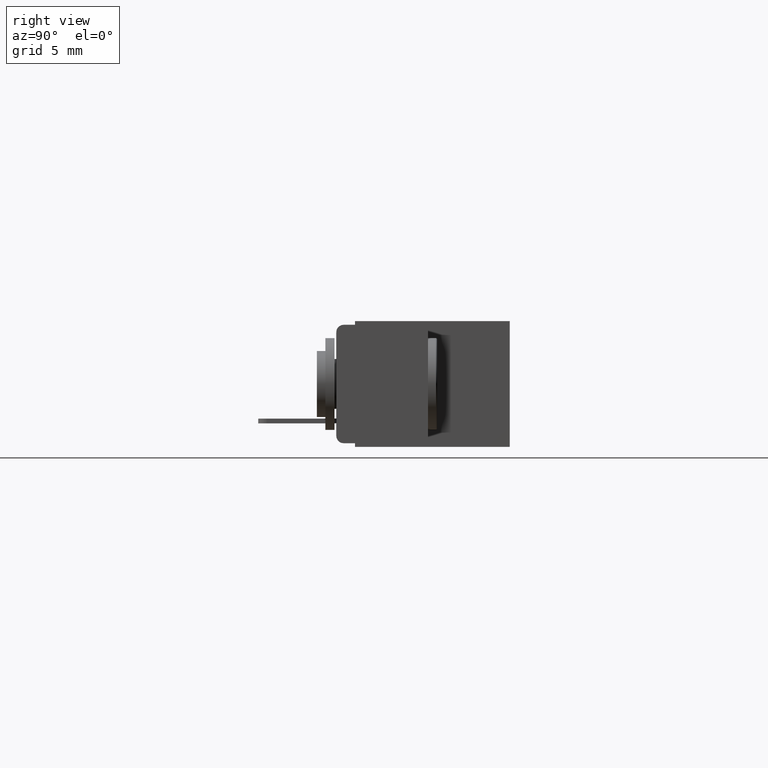
[diagram: clean part render]
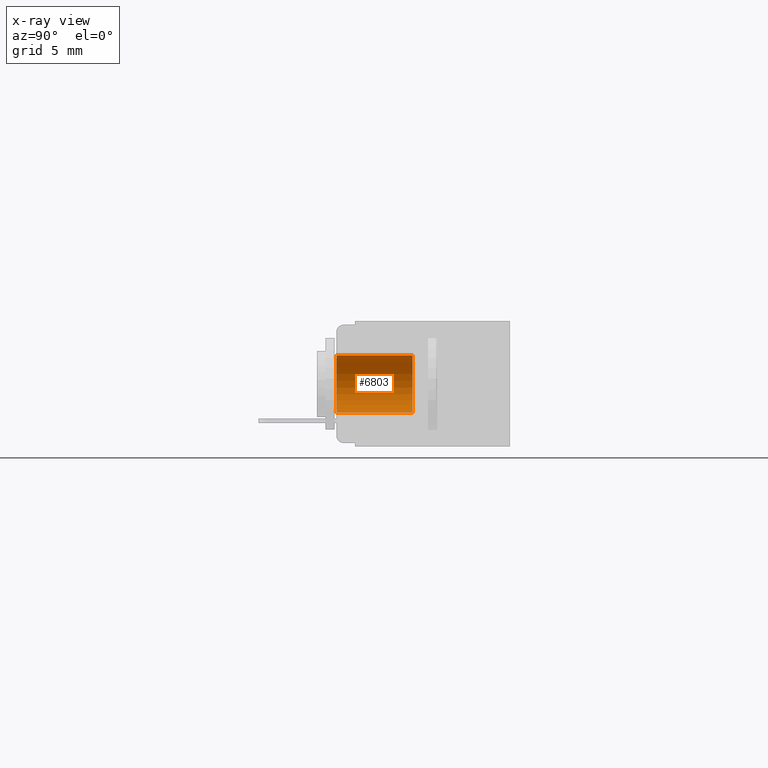
[diagram: x-ray — body ghosted, one internal face saturated and labeled with its STEP entity id]
A machine part, right view, then the same camera in x-ray: the body is ghosted and one INTERNAL B-rep face — a face not visible from any outside direction — is saturated and labeled: STEP entity #6803.
In plain terms, the highlighted cylindrical surface (edge-blend (fillet) strip) has radius 1.9812 mm, axis along (-0, -1, -0).
Its self-contained STEP definition (entity closure, byte-faithful):
#902 = ORIENTED_EDGE ( 'NONE', *, *, #6120, .F. ) ;
#968 = LINE ( 'NONE', #5419, #7703 ) ;
#1474 = CARTESIAN_POINT ( 'NONE',  ( 1.686999999999999800, 0.0000000000000000000, -0.09349999999999981900 ) ) ;
#1610 = AXIS2_PLACEMENT_3D ( 'NONE', #9640, #11275, #7809 ) ;
#1624 = ORIENTED_EDGE ( 'NONE', *, *, #2605, .T. ) ;
#1764 = CARTESIAN_POINT ( 'NONE',  ( 1.686999999999999800, 0.2079999999999999300, -0.2494999999999999700 ) ) ;
#1848 = ORIENTED_EDGE ( 'NONE', *, *, #6089, .T. ) ;
#2156 = AXIS2_PLACEMENT_3D ( 'NONE', #8299, #3840, #9073 ) ;
#2605 = EDGE_CURVE ( 'NONE', #7557, #4445, #4651, .T. ) ;
#2768 = VERTEX_POINT ( 'NONE', #1764 ) ;
#3334 = DIRECTION ( 'NONE',  ( -0.0000000000000000000, -1.000000000000000000, -0.0000000000000000000 ) ) ;
#3497 = AXIS2_PLACEMENT_3D ( 'NONE', #6134, #5298, #5732 ) ;
#3505 = EDGE_CURVE ( 'NONE', #7557, #2768, #10891, .T. ) ;
#3840 = DIRECTION ( 'NONE',  ( -0.0000000000000000000, -1.000000000000000000, -0.0000000000000000000 ) ) ;
#4445 = VERTEX_POINT ( 'NONE', #1474 ) ;
#4651 = LINE ( 'NONE', #8554, #10506 ) ;
#5298 = DIRECTION ( 'NONE',  ( 0.0000000000000000000, -1.000000000000000000, 0.0000000000000000000 ) ) ;
#5419 = CARTESIAN_POINT ( 'NONE',  ( 1.686999999999999800, 0.4729999999999999800, -0.2494999999999999700 ) ) ;
#5697 = CARTESIAN_POINT ( 'NONE',  ( 1.686999999999999800, 0.2079999999999999300, -0.09349999999999981900 ) ) ;
#5732 = DIRECTION ( 'NONE',  ( 0.0000000000000000000, 0.0000000000000000000, 1.000000000000000000 ) ) ;
#6089 = EDGE_CURVE ( 'NONE', #4445, #9166, #8652, .T. ) ;
#6120 = EDGE_CURVE ( 'NONE', #2768, #9166, #968, .T. ) ;
#6134 = CARTESIAN_POINT ( 'NONE',  ( 1.686999999999999800, 0.0000000000000000000, -0.1714999999999999000 ) ) ;
#6803 = ADVANCED_FACE ( 'NONE', ( #9453 ), #8496, .F. ) ;
#6941 = CARTESIAN_POINT ( 'NONE',  ( 1.686999999999999800, 0.0000000000000000000, -0.2494999999999999700 ) ) ;
#7557 = VERTEX_POINT ( 'NONE', #5697 ) ;
#7703 = VECTOR ( 'NONE', #9810, 39.37007874015748100 ) ;
#7809 = DIRECTION ( 'NONE',  ( 0.0000000000000000000, 0.0000000000000000000, 1.000000000000000000 ) ) ;
#8299 = CARTESIAN_POINT ( 'NONE',  ( 1.686999999999999800, 0.4729999999999999800, -0.1714999999999999000 ) ) ;
#8346 = ORIENTED_EDGE ( 'NONE', *, *, #3505, .F. ) ;
#8496 = CYLINDRICAL_SURFACE ( 'NONE', #2156, 0.07800000000000006900 ) ;
#8554 = CARTESIAN_POINT ( 'NONE',  ( 1.686999999999999800, 0.4729999999999999800, -0.09349999999999981900 ) ) ;
#8652 = CIRCLE ( 'NONE', #3497, 0.07800000000000008300 ) ;
#9073 = DIRECTION ( 'NONE',  ( 0.0000000000000000000, 0.0000000000000000000, -1.000000000000000000 ) ) ;
#9166 = VERTEX_POINT ( 'NONE', #6941 ) ;
#9179 = EDGE_LOOP ( 'NONE', ( #8346, #1624, #1848, #902 ) ) ;
#9453 = FACE_OUTER_BOUND ( 'NONE', #9179, .T. ) ;
#9640 = CARTESIAN_POINT ( 'NONE',  ( 1.686999999999999800, 0.2079999999999999300, -0.1714999999999999000 ) ) ;
#9810 = DIRECTION ( 'NONE',  ( -0.0000000000000000000, -1.000000000000000000, -0.0000000000000000000 ) ) ;
#10506 = VECTOR ( 'NONE', #3334, 39.37007874015748100 ) ;
#10891 = CIRCLE ( 'NONE', #1610, 0.07800000000000008300 ) ;
#11275 = DIRECTION ( 'NONE',  ( -0.0000000000000000000, -1.000000000000000000, -0.0000000000000000000 ) ) ;